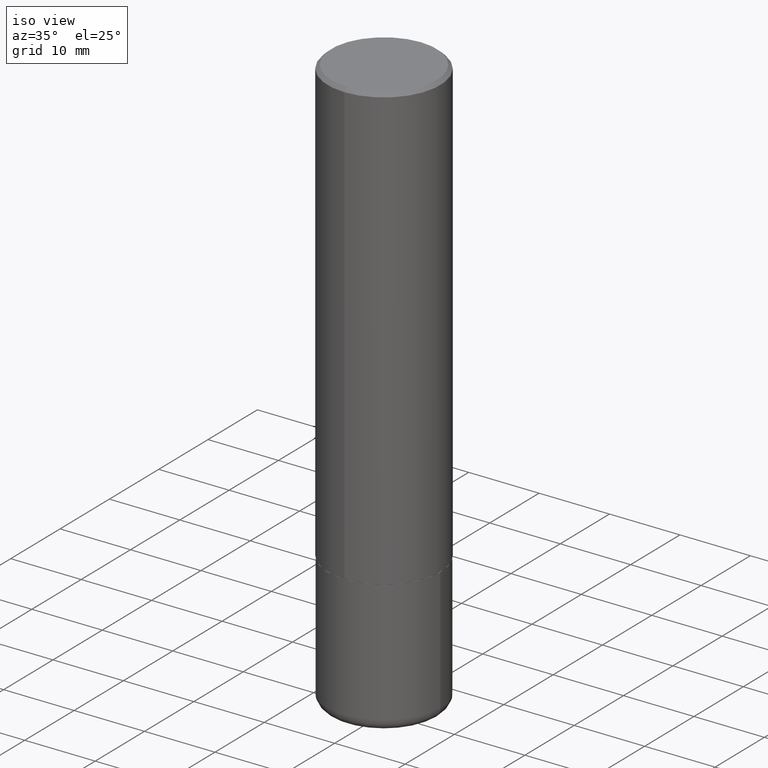
[diagram: clean part render]
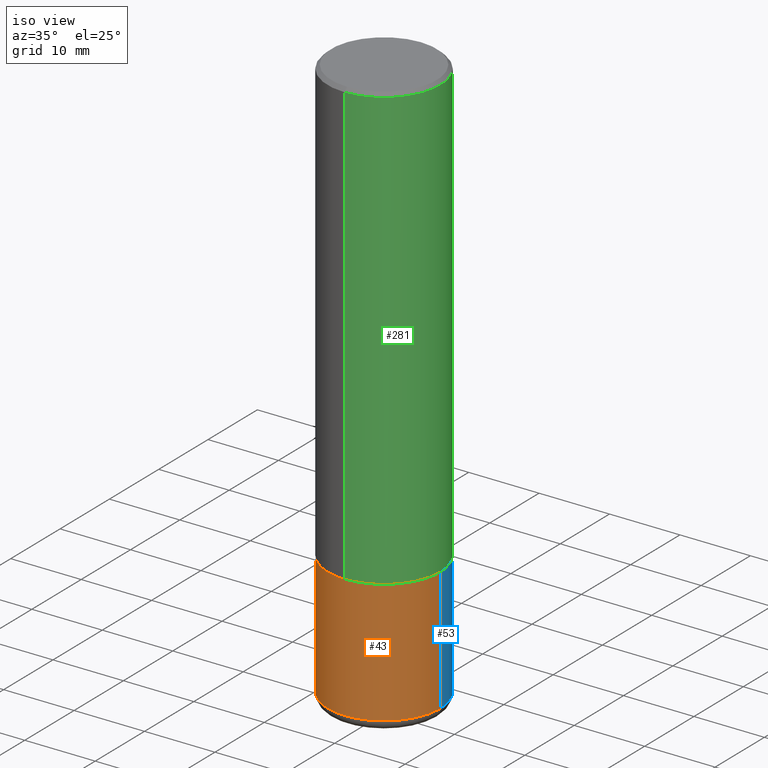
[diagram: same view with three faces highlighted in distinct colors, each labeled with its STEP entity id]
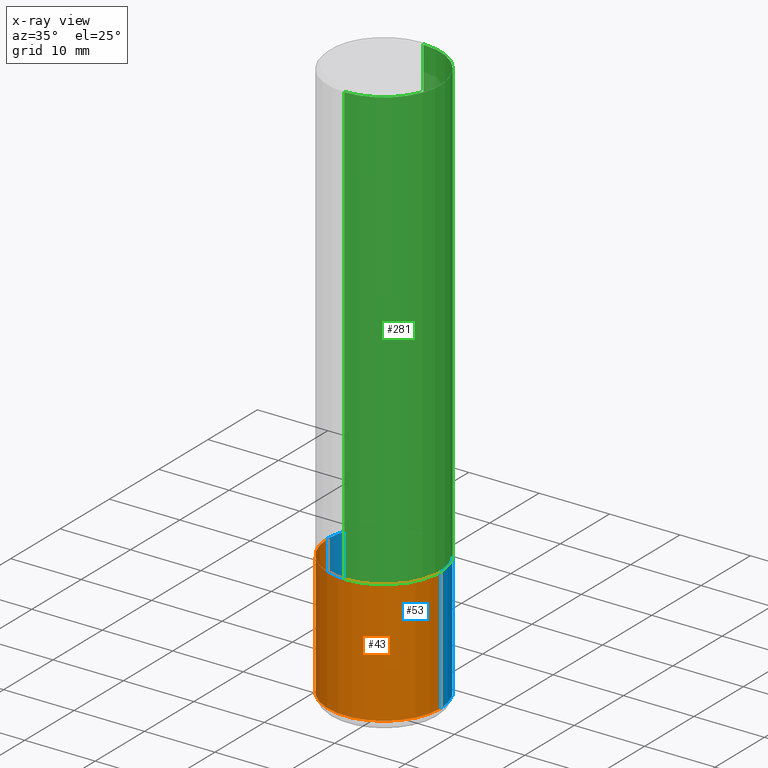
[diagram: x-ray of the same camera — body ghosted, the three highlighted faces saturated]
A machine part, iso view with three faces highlighted in distinct colors.
The next image is the same camera in x-ray (body ghosted, the three faces saturated) — at least one of them is partly hidden behind the body in this view.
Their STEP definitions:

[orange] entity #43 — the highlighted cylindrical surface (partial cylindrical patch) has radius 7.9997 mm, axis along (-0, 0, 1).
#1 = VERTEX_POINT ( 'NONE', #388 ) ;
#13 = LINE ( 'NONE', #392, #362 ) ;
#22 = CARTESIAN_POINT ( 'NONE',  ( 0.3149500000000000077, -1.085920526006994521E-14, -2.480300000000000171 ) ) ;
#24 = ORIENTED_EDGE ( 'NONE', *, *, #128, .T. ) ;
#28 = EDGE_CURVE ( 'NONE', #183, #1, #290, .T. ) ;
#43 = ADVANCED_FACE ( 'NONE', ( #357 ), #109, .T. ) ;
#78 = DIRECTION ( 'NONE',  ( 1.000000000000000000, -6.982962677686266711E-15, 4.876176775795936353E-29 ) ) ;
#80 = CARTESIAN_POINT ( 'NONE',  ( -0.3149499999999999522, -8.827348312785260842E-15, -3.169199999999999573 ) ) ;
#107 = CARTESIAN_POINT ( 'NONE',  ( -0.3149500000000000077, 2.237854346276435590E-15, -1.549218606675782676E-29 ) ) ;
#109 = CYLINDRICAL_SURFACE ( 'NONE', #207, 0.3149500000000000077 ) ;
#128 = EDGE_CURVE ( 'NONE', #183, #219, #368, .T. ) ;
#129 = DIRECTION ( 'NONE',  ( -2.445468806185136597E-29, 3.491481338843145583E-15, 1.000000000000000000 ) ) ;
#130 = ORIENTED_EDGE ( 'NONE', *, *, #372, .F. ) ;
#139 = VECTOR ( 'NONE', #174, 39.37007874015748143 ) ;
#166 = CIRCLE ( 'NONE', #248, 0.3149500000000000077 ) ;
#174 = DIRECTION ( 'NONE',  ( -2.445468806185136877E-29, 3.491481338843145188E-15, 1.000000000000000000 ) ) ;
#183 = VERTEX_POINT ( 'NONE', #80 ) ;
#194 = DIRECTION ( 'NONE',  ( 1.000000000000000000, -6.982962677686269866E-15, 0.000000000000000000 ) ) ;
#204 = EDGE_CURVE ( 'NONE', #219, #303, #13, .T. ) ;
#207 = AXIS2_PLACEMENT_3D ( 'NONE', #293, #261, #78 ) ;
#208 = CARTESIAN_POINT ( 'NONE',  ( 0.3149499999999999522, -1.326448675439898354E-14, -3.169199999999999573 ) ) ;
#219 = VERTEX_POINT ( 'NONE', #208 ) ;
#228 = DIRECTION ( 'NONE',  ( -2.445468806185136877E-29, 3.491481338843145188E-15, 1.000000000000000000 ) ) ;
#248 = AXIS2_PLACEMENT_3D ( 'NONE', #345, #129, #194 ) ;
#261 = DIRECTION ( 'NONE',  ( -2.445468806185136597E-29, 3.491481338843145583E-15, 1.000000000000000000 ) ) ;
#290 = LINE ( 'NONE', #107, #139 ) ;
#291 = ORIENTED_EDGE ( 'NONE', *, *, #204, .T. ) ;
#293 = CARTESIAN_POINT ( 'NONE',  ( 0.000000000000000000, 0.000000000000000000, 0.000000000000000000 ) ) ;
#296 = EDGE_LOOP ( 'NONE', ( #338, #24, #291, #130 ) ) ;
#303 = VERTEX_POINT ( 'NONE', #22 ) ;
#327 = DIRECTION ( 'NONE',  ( 1.000000000000000000, -6.982962677686264344E-15, 0.000000000000000000 ) ) ;
#338 = ORIENTED_EDGE ( 'NONE', *, *, #28, .F. ) ;
#345 = CARTESIAN_POINT ( 'NONE',  ( 6.065496279980994755E-29, -8.659921164732655335E-15, -2.480300000000000171 ) ) ;
#357 = FACE_OUTER_BOUND ( 'NONE', #296, .T. ) ;
#362 = VECTOR ( 'NONE', #228, 39.37007874015748143 ) ;
#367 = AXIS2_PLACEMENT_3D ( 'NONE', #377, #373, #327 ) ;
#368 = CIRCLE ( 'NONE', #367, 0.3149499999999999522 ) ;
#372 = EDGE_CURVE ( 'NONE', #1, #303, #166, .T. ) ;
#373 = DIRECTION ( 'NONE',  ( -2.445468806185136597E-29, 3.491481338843145583E-15, 1.000000000000000000 ) ) ;
#377 = CARTESIAN_POINT ( 'NONE',  ( 7.750179740561933543E-29, -1.106520265906169525E-14, -3.169199999999999573 ) ) ;
#388 = CARTESIAN_POINT ( 'NONE',  ( -0.3149500000000000077, -7.624707565620739308E-15, -2.480300000000000171 ) ) ;
#392 = CARTESIAN_POINT ( 'NONE',  ( 0.3149500000000000077, -2.199284095337289871E-15, 1.535751875536930130E-29 ) ) ;

[blue] entity #53 — the highlighted cylindrical surface (partial cylindrical patch) has radius 7.9997 mm, axis along (-0, 0, 1).
#1 = VERTEX_POINT ( 'NONE', #388 ) ;
#13 = LINE ( 'NONE', #392, #362 ) ;
#19 = FACE_OUTER_BOUND ( 'NONE', #309, .T. ) ;
#22 = CARTESIAN_POINT ( 'NONE',  ( 0.3149500000000000077, -1.085920526006994521E-14, -2.480300000000000171 ) ) ;
#28 = EDGE_CURVE ( 'NONE', #183, #1, #290, .T. ) ;
#31 = DIRECTION ( 'NONE',  ( 1.000000000000000000, -6.982962677686269866E-15, 0.000000000000000000 ) ) ;
#33 = ORIENTED_EDGE ( 'NONE', *, *, #120, .F. ) ;
#53 = ADVANCED_FACE ( 'NONE', ( #19 ), #235, .T. ) ;
#63 = DIRECTION ( 'NONE',  ( 1.000000000000000000, -6.982962677686264344E-15, 0.000000000000000000 ) ) ;
#68 = EDGE_CURVE ( 'NONE', #219, #183, #91, .T. ) ;
#69 = ORIENTED_EDGE ( 'NONE', *, *, #68, .T. ) ;
#80 = CARTESIAN_POINT ( 'NONE',  ( -0.3149499999999999522, -8.827348312785260842E-15, -3.169199999999999573 ) ) ;
#90 = ORIENTED_EDGE ( 'NONE', *, *, #204, .F. ) ;
#91 = CIRCLE ( 'NONE', #331, 0.3149499999999999522 ) ;
#99 = CIRCLE ( 'NONE', #124, 0.3149500000000000077 ) ;
#100 = DIRECTION ( 'NONE',  ( -2.445468806185136597E-29, 3.491481338843145583E-15, 1.000000000000000000 ) ) ;
#107 = CARTESIAN_POINT ( 'NONE',  ( -0.3149500000000000077, 2.237854346276435590E-15, -1.549218606675782676E-29 ) ) ;
#120 = EDGE_CURVE ( 'NONE', #303, #1, #99, .T. ) ;
#124 = AXIS2_PLACEMENT_3D ( 'NONE', #184, #149, #31 ) ;
#139 = VECTOR ( 'NONE', #174, 39.37007874015748143 ) ;
#149 = DIRECTION ( 'NONE',  ( -2.445468806185136597E-29, 3.491481338843145583E-15, 1.000000000000000000 ) ) ;
#157 = DIRECTION ( 'NONE',  ( -2.445468806185136597E-29, 3.491481338843145583E-15, 1.000000000000000000 ) ) ;
#158 = DIRECTION ( 'NONE',  ( 1.000000000000000000, -6.982962677686266711E-15, 4.876176775795936353E-29 ) ) ;
#174 = DIRECTION ( 'NONE',  ( -2.445468806185136877E-29, 3.491481338843145188E-15, 1.000000000000000000 ) ) ;
#183 = VERTEX_POINT ( 'NONE', #80 ) ;
#184 = CARTESIAN_POINT ( 'NONE',  ( 6.065496279980994755E-29, -8.659921164732655335E-15, -2.480300000000000171 ) ) ;
#204 = EDGE_CURVE ( 'NONE', #219, #303, #13, .T. ) ;
#208 = CARTESIAN_POINT ( 'NONE',  ( 0.3149499999999999522, -1.326448675439898354E-14, -3.169199999999999573 ) ) ;
#214 = ORIENTED_EDGE ( 'NONE', *, *, #28, .T. ) ;
#219 = VERTEX_POINT ( 'NONE', #208 ) ;
#228 = DIRECTION ( 'NONE',  ( -2.445468806185136877E-29, 3.491481338843145188E-15, 1.000000000000000000 ) ) ;
#235 = CYLINDRICAL_SURFACE ( 'NONE', #242, 0.3149500000000000077 ) ;
#242 = AXIS2_PLACEMENT_3D ( 'NONE', #348, #100, #158 ) ;
#290 = LINE ( 'NONE', #107, #139 ) ;
#303 = VERTEX_POINT ( 'NONE', #22 ) ;
#309 = EDGE_LOOP ( 'NONE', ( #69, #214, #33, #90 ) ) ;
#330 = CARTESIAN_POINT ( 'NONE',  ( 7.750179740561933543E-29, -1.106520265906169525E-14, -3.169199999999999573 ) ) ;
#331 = AXIS2_PLACEMENT_3D ( 'NONE', #330, #157, #63 ) ;
#348 = CARTESIAN_POINT ( 'NONE',  ( 0.000000000000000000, 0.000000000000000000, 0.000000000000000000 ) ) ;
#362 = VECTOR ( 'NONE', #228, 39.37007874015748143 ) ;
#388 = CARTESIAN_POINT ( 'NONE',  ( -0.3149500000000000077, -7.624707565620739308E-15, -2.480300000000000171 ) ) ;
#392 = CARTESIAN_POINT ( 'NONE',  ( 0.3149500000000000077, -2.199284095337289871E-15, 1.535751875536930130E-29 ) ) ;

[green] entity #281 — the highlighted cylindrical surface (partial cylindrical patch) has radius 7.9997 mm, axis along (-0, 0, 1).
#8 = VECTOR ( 'NONE', #274, 39.37007874015748143 ) ;
#41 = ORIENTED_EDGE ( 'NONE', *, *, #239, .F. ) ;
#42 = DIRECTION ( 'NONE',  ( -6.982962677686264344E-15, -1.000000000000000000, 3.496972028735619395E-15 ) ) ;
#65 = DIRECTION ( 'NONE',  ( -2.441634677925747084E-29, 3.496972028735619789E-15, 1.000000000000000000 ) ) ;
#72 = AXIS2_PLACEMENT_3D ( 'NONE', #142, #400, #185 ) ;
#73 = CIRCLE ( 'NONE', #295, 0.3149500000000000077 ) ;
#88 = ORIENTED_EDGE ( 'NONE', *, *, #390, .F. ) ;
#94 = CARTESIAN_POINT ( 'NONE',  ( -2.199284095337230706E-15, -0.3149500000000089450, -2.479299999999999393 ) ) ;
#101 = CARTESIAN_POINT ( 'NONE',  ( 4.883269355851518516E-31, -6.993944057471272858E-17, -0.02000000000000009756 ) ) ;
#117 = ORIENTED_EDGE ( 'NONE', *, *, #213, .T. ) ;
#119 = CARTESIAN_POINT ( 'NONE',  ( 2.237854346276435985E-15, 0.3149500000000001743, -1.101371340450283917E-15 ) ) ;
#123 = EDGE_LOOP ( 'NONE', ( #379, #117, #88, #41 ) ) ;
#131 = CARTESIAN_POINT ( 'NONE',  ( -2.199284095337290265E-15, -0.3149500000000001743, 1.101371340450283917E-15 ) ) ;
#142 = CARTESIAN_POINT ( 'NONE',  ( 6.053544856981305662E-29, -8.670042750844224214E-15, -2.479300000000000725 ) ) ;
#151 = FACE_OUTER_BOUND ( 'NONE', #123, .T. ) ;
#163 = DIRECTION ( 'NONE',  ( -2.441634677925747084E-29, 3.496972028735619789E-15, 1.000000000000000000 ) ) ;
#185 = DIRECTION ( 'NONE',  ( -6.982962677686265922E-15, -1.000000000000000000, 3.469564049740290009E-15 ) ) ;
#213 = EDGE_CURVE ( 'NONE', #313, #256, #269, .T. ) ;
#215 = CARTESIAN_POINT ( 'NONE',  ( 0.000000000000000000, 0.000000000000000000, 0.000000000000000000 ) ) ;
#225 = CARTESIAN_POINT ( 'NONE',  ( -2.160713844398143363E-15, -0.3149500000000000632, -0.01999999999999899775 ) ) ;
#239 = EDGE_CURVE ( 'NONE', #407, #415, #253, .T. ) ;
#253 = LINE ( 'NONE', #131, #8 ) ;
#256 = VERTEX_POINT ( 'NONE', #328 ) ;
#266 = AXIS2_PLACEMENT_3D ( 'NONE', #215, #65, #42 ) ;
#269 = LINE ( 'NONE', #119, #301 ) ;
#274 = DIRECTION ( 'NONE',  ( -2.441634677925747084E-29, 3.496972028735619395E-15, 1.000000000000000000 ) ) ;
#281 = ADVANCED_FACE ( 'NONE', ( #151 ), #374, .T. ) ;
#283 = CARTESIAN_POINT ( 'NONE',  ( 2.237854346276467145E-15, 0.3149499999999916255, -2.479300000000001614 ) ) ;
#295 = AXIS2_PLACEMENT_3D ( 'NONE', #101, #163, #417 ) ;
#301 = VECTOR ( 'NONE', #340, 39.37007874015748143 ) ;
#304 = EDGE_CURVE ( 'NONE', #407, #313, #315, .T. ) ;
#313 = VERTEX_POINT ( 'NONE', #283 ) ;
#315 = CIRCLE ( 'NONE', #72, 0.3149500000000002853 ) ;
#328 = CARTESIAN_POINT ( 'NONE',  ( 2.199284095337289871E-15, 0.3149499999999999522, -0.02000000000000120084 ) ) ;
#340 = DIRECTION ( 'NONE',  ( -2.441634677925747084E-29, 3.496972028735619395E-15, 1.000000000000000000 ) ) ;
#374 = CYLINDRICAL_SURFACE ( 'NONE', #266, 0.3149500000000001743 ) ;
#379 = ORIENTED_EDGE ( 'NONE', *, *, #304, .T. ) ;
#390 = EDGE_CURVE ( 'NONE', #415, #256, #73, .T. ) ;
#400 = DIRECTION ( 'NONE',  ( -2.441634677925747084E-29, 3.496972028735619789E-15, 1.000000000000000000 ) ) ;
#407 = VERTEX_POINT ( 'NONE', #94 ) ;
#415 = VERTEX_POINT ( 'NONE', #225 ) ;
#417 = DIRECTION ( 'NONE',  ( -6.982962677686265922E-15, -1.000000000000000000, 3.496670018878889100E-15 ) ) ;